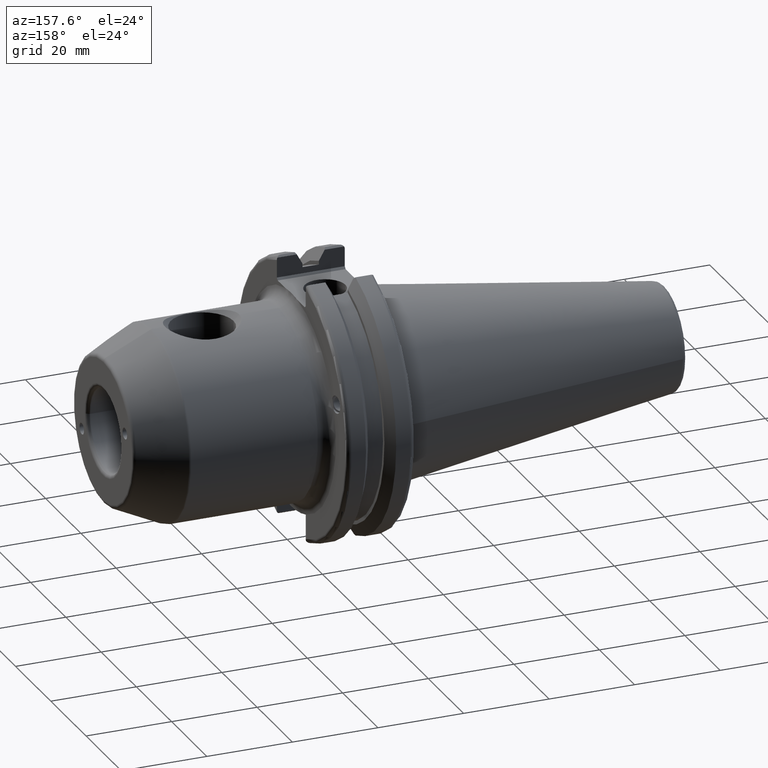
[diagram: clean part render]
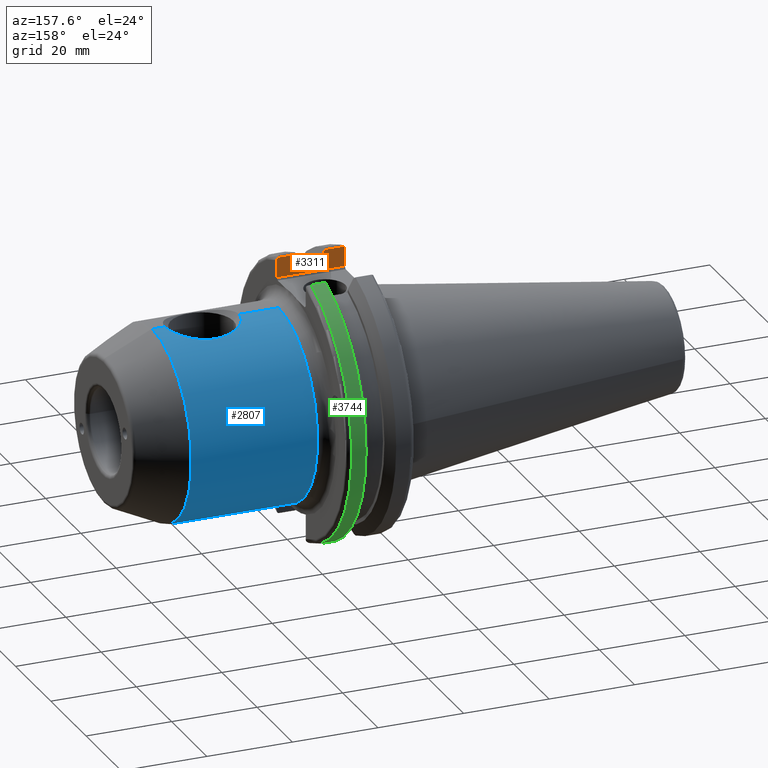
[diagram: same view with three faces highlighted in distinct colors, each labeled with its STEP entity id]
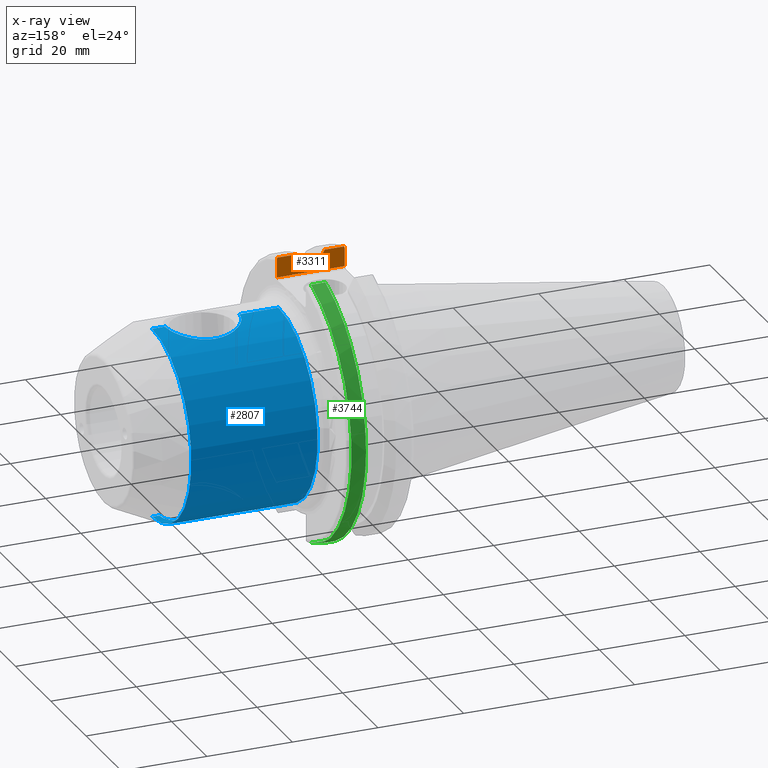
[diagram: x-ray of the same camera — body ghosted, the three highlighted faces saturated]
A machine part, auxiliary view with three faces highlighted in distinct colors.
The next image is the same camera in x-ray (body ghosted, the three faces saturated) — at least one of them is partly hidden behind the body in this view.
Their STEP definitions:

[orange] entity #3311 — the highlighted planar face has unit normal (0, -1, 0).
#859=CARTESIAN_POINT('',(1.890587227491E1,-8.19E0,3.017550162589E1));
#860=CARTESIAN_POINT('',(1.893730245169E1,-8.19E0,3.012160739357E1));
#861=CARTESIAN_POINT('',(1.899008895177E1,-8.19E0,3.001000429245E1));
#862=CARTESIAN_POINT('',(1.903851863936E1,-8.19E0,2.982130314403E1));
#863=CARTESIAN_POINT('',(1.905E1,-8.19E0,2.970021459717E1));
#864=CARTESIAN_POINT('',(1.905E1,-8.19E0,2.963927124610E1));
#866=DIRECTION('',(1.E0,0.E0,0.E0));
#867=VECTOR('',#866,4.524357578422E0);
#868=CARTESIAN_POINT('',(1.438151469649E1,-8.19E0,3.017550162589E1));
#869=LINE('',#868,#867);
#870=DIRECTION('',(0.E0,0.E0,1.E0));
#871=VECTOR('',#870,8.448829287288E-1);
#872=CARTESIAN_POINT('',(1.30491E1,-8.19E0,2.693225575402E1));
#873=LINE('',#872,#871);
#874=DIRECTION('',(0.E0,0.E0,-1.E0));
#875=VECTOR('',#874,8.448829287288E-1);
#876=CARTESIAN_POINT('',(9.2191E0,-8.19E0,2.777713868275E1));
#877=LINE('',#876,#875);
#878=DIRECTION('',(1.E0,0.E0,0.E0));
#879=VECTOR('',#878,4.567557578422E0);
#880=CARTESIAN_POINT('',(3.319127725090E0,-8.19E0,3.017550162589E1));
#881=LINE('',#880,#879);
#882=CARTESIAN_POINT('',(3.175E0,-8.19E0,2.963927124610E1));
#883=CARTESIAN_POINT('',(3.175E0,-8.19E0,2.970021491639E1));
#884=CARTESIAN_POINT('',(3.186481474971E0,-8.19E0,2.982130388489E1));
#885=CARTESIAN_POINT('',(3.234911309555E0,-8.19E0,3.001000497750E1));
#886=CARTESIAN_POINT('',(3.287697705116E0,-8.19E0,3.012160766245E1));
#887=CARTESIAN_POINT('',(3.319127725090E0,-8.19E0,3.017550162589E1));
#889=DIRECTION('',(0.E0,0.E0,1.E0));
#890=VECTOR('',#889,4.139271246102E0);
#891=CARTESIAN_POINT('',(3.175E0,-8.19E0,2.55E1));
#892=LINE('',#891,#890);
#893=DIRECTION('',(-1.E0,0.E0,0.E0));
#894=VECTOR('',#893,1.5875E1);
#895=CARTESIAN_POINT('',(1.905E1,-8.19E0,2.55E1));
#896=LINE('',#895,#894);
#897=DIRECTION('',(0.E0,0.E0,-1.E0));
#898=VECTOR('',#897,4.139271246102E0);
#899=CARTESIAN_POINT('',(1.905E1,-8.19E0,2.963927124610E1));
#900=LINE('',#899,#898);
#1330=CARTESIAN_POINT('',(9.2191E0,-8.19E0,2.777713868275E1));
#1331=CARTESIAN_POINT('',(9.071342064345E0,-8.19E0,2.804395547231E1));
#1332=CARTESIAN_POINT('',(8.775596146973E0,-8.19E0,2.857734670457E1));
#1333=CARTESIAN_POINT('',(8.331432272850E0,-8.19E0,2.937678822525E1));
#1334=CARTESIAN_POINT('',(8.034991770410E0,-8.19E0,2.990933412171E1));
#1335=CARTESIAN_POINT('',(7.886685303513E0,-8.19E0,3.017550162589E1));
#1368=DIRECTION('',(-1.E0,0.E0,0.E0));
#1369=VECTOR('',#1368,3.83E0);
#1370=CARTESIAN_POINT('',(1.30491E1,-8.19E0,2.693225575402E1));
#1371=LINE('',#1370,#1369);
#1406=CARTESIAN_POINT('',(1.438151469649E1,-8.19E0,3.017550162589E1));
#1407=CARTESIAN_POINT('',(1.423320822958E1,-8.19E0,2.990933412169E1));
#1408=CARTESIAN_POINT('',(1.393676772712E1,-8.19E0,2.937678822520E1));
#1409=CARTESIAN_POINT('',(1.349260385300E1,-8.19E0,2.857734670452E1));
#1410=CARTESIAN_POINT('',(1.319685793564E1,-8.19E0,2.804395547229E1));
#1411=CARTESIAN_POINT('',(1.30491E1,-8.19E0,2.777713868275E1));
#2114=CARTESIAN_POINT('',(3.175E0,-8.19E0,2.963927124610E1));
#2116=VERTEX_POINT('',#2114);
#2117=CARTESIAN_POINT('',(3.175E0,-8.19E0,2.55E1));
#2118=VERTEX_POINT('',#2117);
#2163=CARTESIAN_POINT('',(1.905E1,-8.19E0,2.55E1));
#2165=VERTEX_POINT('',#2163);
#2166=CARTESIAN_POINT('',(1.905E1,-8.19E0,2.963927124610E1));
#2167=VERTEX_POINT('',#2166);
#2171=VERTEX_POINT('',#859);
#2175=VERTEX_POINT('',#887);
#2176=CARTESIAN_POINT('',(7.886685303513E0,-8.19E0,3.017550162589E1));
#2177=VERTEX_POINT('',#2176);
#2178=VERTEX_POINT('',#1330);
#2179=CARTESIAN_POINT('',(9.2191E0,-8.19E0,2.693225575402E1));
#2180=VERTEX_POINT('',#2179);
#2181=CARTESIAN_POINT('',(1.30491E1,-8.19E0,2.693225575402E1));
#2182=VERTEX_POINT('',#2181);
#2183=CARTESIAN_POINT('',(1.30491E1,-8.19E0,2.777713868275E1));
#2184=VERTEX_POINT('',#2183);
#2185=VERTEX_POINT('',#1406);
#3284=CARTESIAN_POINT('',(3.175E0,-8.19E0,2.5E1));
#3285=DIRECTION('',(0.E0,-1.E0,0.E0));
#3286=DIRECTION('',(1.E0,0.E0,0.E0));
#3287=AXIS2_PLACEMENT_3D('',#3284,#3285,#3286);
#3288=PLANE('',#3287);
#3290=ORIENTED_EDGE('',*,*,#3289,.F.);
#3292=ORIENTED_EDGE('',*,*,#3291,.F.);
#3294=ORIENTED_EDGE('',*,*,#3293,.T.);
#3296=ORIENTED_EDGE('',*,*,#3295,.F.);
#3298=ORIENTED_EDGE('',*,*,#3297,.T.);
#3300=ORIENTED_EDGE('',*,*,#3299,.F.);
#3302=ORIENTED_EDGE('',*,*,#3301,.T.);
#3303=ORIENTED_EDGE('',*,*,#3276,.F.);
#3304=ORIENTED_EDGE('',*,*,#3230,.F.);
#3305=ORIENTED_EDGE('',*,*,#3197,.F.);
#3307=ORIENTED_EDGE('',*,*,#3306,.F.);
#3308=ORIENTED_EDGE('',*,*,#2938,.F.);
#3309=EDGE_LOOP('',(#3290,#3292,#3294,#3296,#3298,#3300,#3302,#3303,#3304,#3305,
#3307,#3308));
#3310=FACE_OUTER_BOUND('',#3309,.F.);
#3311=ADVANCED_FACE('',(#3310),#3288,.F.);
#865=B_SPLINE_CURVE_WITH_KNOTS('',3,(#859,#860,#861,#862,#863,#864),
.UNSPECIFIED.,.F.,.F.,(4,1,1,4),(0.E0,3.333333333333E-1,6.666666666667E-1,1.E0),
.UNSPECIFIED.);
#888=B_SPLINE_CURVE_WITH_KNOTS('',3,(#882,#883,#884,#885,#886,#887),
.UNSPECIFIED.,.F.,.F.,(4,1,1,4),(0.E0,3.333333333333E-1,6.666666666667E-1,1.E0),
.UNSPECIFIED.);
#1336=B_SPLINE_CURVE_WITH_KNOTS('',3,(#1330,#1331,#1332,#1333,#1334,#1335),
.UNSPECIFIED.,.F.,.F.,(4,1,1,4),(0.E0,3.333333333333E-1,6.666666666667E-1,1.E0),
.UNSPECIFIED.);
#1412=B_SPLINE_CURVE_WITH_KNOTS('',3,(#1406,#1407,#1408,#1409,#1410,#1411),
.UNSPECIFIED.,.F.,.F.,(4,1,1,4),(0.E0,3.333333333333E-1,6.666666666667E-1,1.E0),
.UNSPECIFIED.);
#2938=EDGE_CURVE('',#2167,#2165,#900,.T.);
#3197=EDGE_CURVE('',#2118,#2116,#892,.T.);
#3230=EDGE_CURVE('',#2116,#2175,#888,.T.);
#3276=EDGE_CURVE('',#2175,#2177,#881,.T.);
#3289=EDGE_CURVE('',#2171,#2167,#865,.T.);
#3291=EDGE_CURVE('',#2185,#2171,#869,.T.);
#3293=EDGE_CURVE('',#2185,#2184,#1412,.T.);
#3295=EDGE_CURVE('',#2182,#2184,#873,.T.);
#3297=EDGE_CURVE('',#2182,#2180,#1371,.T.);
#3299=EDGE_CURVE('',#2178,#2180,#877,.T.);
#3301=EDGE_CURVE('',#2178,#2177,#1336,.T.);
#3306=EDGE_CURVE('',#2165,#2118,#896,.T.);

[blue] entity #2807 — the highlighted cylindrical surface (partial cylindrical patch) has radius 22.225 mm, axis along (-1, 0, 0).
#329=CARTESIAN_POINT('',(5.157325667769E1,0.E0,0.E0));
#330=DIRECTION('',(-1.E0,0.E0,0.E0));
#331=DIRECTION('',(0.E0,0.E0,1.E0));
#332=AXIS2_PLACEMENT_3D('',#329,#330,#331);
#334=CARTESIAN_POINT('',(3.123444482325E1,0.E0,2.2225E1));
#335=CARTESIAN_POINT('',(3.123444482325E1,4.883741815366E-1,2.2225E1));
#336=CARTESIAN_POINT('',(3.134335956089E1,1.451315839073E0,2.219410117034E1));
#337=CARTESIAN_POINT('',(3.188307848736E1,2.924021812641E0,2.204667024506E1));
#338=CARTESIAN_POINT('',(3.270991636614E1,4.191791789810E0,2.183712443145E1));
#339=CARTESIAN_POINT('',(3.380338590148E1,5.306783190876E0,2.159080031487E1));
#340=CARTESIAN_POINT('',(3.514705627939E1,6.231512918011E0,2.133913666660E1));
#341=CARTESIAN_POINT('',(3.670973350809E1,6.929616305268E0,2.111972420869E1));
#342=CARTESIAN_POINT('',(3.843010236439E1,7.335809946250E0,2.097986160014E1));
#343=CARTESIAN_POINT('',(3.996404821973E1,7.435625345473E0,2.094412650025E1));
#344=CARTESIAN_POINT('',(4.155436570509E1,7.308677986189E0,2.098947797479E1));
#345=CARTESIAN_POINT('',(4.323791891991E1,6.874957806812E0,2.113775601056E1));
#346=CARTESIAN_POINT('',(4.474254289130E1,6.176876801327E0,2.135481166011E1));
#347=CARTESIAN_POINT('',(4.602847786051E1,5.275795897414E0,2.159794693241E1));
#348=CARTESIAN_POINT('',(4.709307249598E1,4.185195196654E0,2.183796832880E1));
#349=CARTESIAN_POINT('',(4.791248569142E1,2.932339709763E0,2.204550054964E1));
#350=CARTESIAN_POINT('',(4.845646169976E1,1.454350400451E0,2.219403651686E1));
#351=CARTESIAN_POINT('',(4.856555517675E1,4.899060793536E-1,2.2225E1));
#352=CARTESIAN_POINT('',(4.856555517675E1,0.E0,2.2225E1));
#354=CARTESIAN_POINT('',(2.205E1,0.E0,0.E0));
#355=DIRECTION('',(-1.E0,0.E0,0.E0));
#356=DIRECTION('',(0.E0,0.E0,1.E0));
#357=AXIS2_PLACEMENT_3D('',#354,#355,#356);
#359=CARTESIAN_POINT('',(4.99E1,0.E0,-2.2225E1));
#360=CARTESIAN_POINT('',(4.99E1,5.266290554217E-1,-2.2225E1));
#361=CARTESIAN_POINT('',(4.979395168700E1,1.566257158636E0,-2.218892601817E1));
#362=CARTESIAN_POINT('',(4.927199316742E1,3.151051165093E0,-2.201791786874E1));
#363=CARTESIAN_POINT('',(4.846314688054E1,4.532134274058E0,-2.177135091096E1));
#364=CARTESIAN_POINT('',(4.738208981596E1,5.759682141090E0,-2.147654047276E1));
#365=CARTESIAN_POINT('',(4.604667094431E1,6.802810682842E0,-2.116608645173E1));
#366=CARTESIAN_POINT('',(4.442764855761E1,7.650863542211E0,-2.087128953820E1));
#367=CARTESIAN_POINT('',(4.262422491685E1,8.228468318903E0,-2.064717369532E1));
#368=CARTESIAN_POINT('',(4.072215137463E1,8.494900942841E0,-2.053749324676E1));
#369=CARTESIAN_POINT('',(3.911088193251E1,8.496472447896E0,-2.053683753599E1));
#370=CARTESIAN_POINT('',(3.722614872868E1,8.238790116959E0,-2.064295809076E1));
#371=CARTESIAN_POINT('',(3.543057798754E1,7.674748786331E0,-2.086237962810E1));
#372=CARTESIAN_POINT('',(3.379581424746E1,6.831222632456E0,-2.115695619527E1));
#373=CARTESIAN_POINT('',(3.243730993059E1,5.780107640965E0,-2.147134385689E1));
#374=CARTESIAN_POINT('',(3.133596721890E1,4.533502663176E0,-2.177147402450E1));
#375=CARTESIAN_POINT('',(3.052337615752E1,3.140680000151E0,-2.201940569538E1));
#376=CARTESIAN_POINT('',(3.000592258261E1,1.563056913621E0,-2.218898022348E1));
#377=CARTESIAN_POINT('',(2.99E1,5.252032326271E-1,-2.2225E1));
#378=CARTESIAN_POINT('',(2.99E1,0.E0,-2.2225E1));
#408=DIRECTION('',(1.E0,0.E0,-1.181205541071E-14));
#409=VECTOR('',#408,3.007701500942E0);
#410=CARTESIAN_POINT('',(4.856555517675E1,0.E0,2.2225E1));
#411=LINE('',#410,#409);
#412=DIRECTION('',(1.E0,0.E0,0.E0));
#413=VECTOR('',#412,1.673256677694E0);
#414=CARTESIAN_POINT('',(4.99E1,0.E0,-2.2225E1));
#415=LINE('',#414,#413);
#437=DIRECTION('',(1.E0,0.E0,0.E0));
#438=VECTOR('',#437,7.85E0);
#439=CARTESIAN_POINT('',(2.205E1,0.E0,-2.2225E1));
#440=LINE('',#439,#438);
#446=DIRECTION('',(1.E0,0.E0,0.E0));
#447=VECTOR('',#446,9.184444823249E0);
#448=CARTESIAN_POINT('',(2.205E1,0.E0,2.2225E1));
#449=LINE('',#448,#447);
#2385=CARTESIAN_POINT('',(2.205E1,0.E0,2.2225E1));
#2387=VERTEX_POINT('',#2385);
#2388=CARTESIAN_POINT('',(5.157325667769E1,0.E0,2.2225E1));
#2390=VERTEX_POINT('',#2388);
#2397=CARTESIAN_POINT('',(2.205E1,0.E0,-2.2225E1));
#2399=VERTEX_POINT('',#2397);
#2400=CARTESIAN_POINT('',(5.157325667769E1,0.E0,-2.2225E1));
#2402=VERTEX_POINT('',#2400);
#2470=VERTEX_POINT('',#334);
#2471=VERTEX_POINT('',#352);
#2472=VERTEX_POINT('',#359);
#2473=VERTEX_POINT('',#378);
#2785=CARTESIAN_POINT('',(6.51975E1,0.E0,0.E0));
#2786=DIRECTION('',(-1.E0,0.E0,0.E0));
#2787=DIRECTION('',(0.E0,0.E0,-1.E0));
#2788=AXIS2_PLACEMENT_3D('',#2785,#2786,#2787);
#2789=CYLINDRICAL_SURFACE('',#2788,2.2225E1);
#2791=ORIENTED_EDGE('',*,*,#2790,.F.);
#2793=ORIENTED_EDGE('',*,*,#2792,.F.);
#2795=ORIENTED_EDGE('',*,*,#2794,.T.);
#2797=ORIENTED_EDGE('',*,*,#2796,.T.);
#2799=ORIENTED_EDGE('',*,*,#2798,.F.);
#2801=ORIENTED_EDGE('',*,*,#2800,.T.);
#2802=ORIENTED_EDGE('',*,*,#2778,.F.);
#2804=ORIENTED_EDGE('',*,*,#2803,.F.);
#2805=EDGE_LOOP('',(#2791,#2793,#2795,#2797,#2799,#2801,#2802,#2804));
#2806=FACE_OUTER_BOUND('',#2805,.F.);
#2807=ADVANCED_FACE('',(#2806),#2789,.T.);
#333=CIRCLE('',#332,2.2225E1);
#353=B_SPLINE_CURVE_WITH_KNOTS('',3,(#334,#335,#336,#337,#338,#339,#340,#341,
#342,#343,#344,#345,#346,#347,#348,#349,#350,#351,#352),.UNSPECIFIED.,.F.,.F.,
(4,1,1,1,1,1,1,1,1,1,1,1,1,1,1,1,4),(0.E0,6.25E-2,1.25E-1,1.875E-1,2.5E-1,
3.125E-1,3.75E-1,4.375E-1,5.E-1,5.625E-1,6.25E-1,6.875E-1,7.5E-1,8.125E-1,
8.75E-1,9.375E-1,1.E0),.UNSPECIFIED.);
#358=CIRCLE('',#357,2.2225E1);
#379=B_SPLINE_CURVE_WITH_KNOTS('',3,(#359,#360,#361,#362,#363,#364,#365,#366,
#367,#368,#369,#370,#371,#372,#373,#374,#375,#376,#377,#378),.UNSPECIFIED.,.F.,
.F.,(4,1,1,1,1,1,1,1,1,1,1,1,1,1,1,1,1,4),(0.E0,5.882352941176E-2,
1.176470588235E-1,1.764705882353E-1,2.352941176471E-1,2.941176470588E-1,
3.529411764706E-1,4.117647058824E-1,4.705882352941E-1,5.294117647059E-1,
5.882352941176E-1,6.470588235294E-1,7.058823529412E-1,7.647058823529E-1,
8.235294117647E-1,8.823529411765E-1,9.411764705882E-1,1.E0),.UNSPECIFIED.);
#2778=EDGE_CURVE('',#2390,#2402,#333,.T.);
#2790=EDGE_CURVE('',#2470,#2471,#353,.T.);
#2792=EDGE_CURVE('',#2387,#2470,#449,.T.);
#2794=EDGE_CURVE('',#2387,#2399,#358,.T.);
#2796=EDGE_CURVE('',#2399,#2473,#440,.T.);
#2798=EDGE_CURVE('',#2472,#2473,#379,.T.);
#2800=EDGE_CURVE('',#2472,#2402,#415,.T.);
#2803=EDGE_CURVE('',#2471,#2390,#411,.T.);

[green] entity #3744 — the highlighted cylindrical surface (partial cylindrical patch) has radius 31.75 mm, axis along (1, 0, 0).
#1022=CARTESIAN_POINT('',(1.805E1,0.E0,0.E0));
#1023=DIRECTION('',(1.E0,0.E0,0.E0));
#1024=DIRECTION('',(0.E0,2.731353772607E-1,-9.619756055580E-1));
#1025=AXIS2_PLACEMENT_3D('',#1022,#1023,#1024);
#1244=CARTESIAN_POINT('',(1.466026676908E1,8.672048228027E0,-3.054272547647E1));
#1251=CARTESIAN_POINT('',(1.466026676908E1,0.E0,0.E0));
#1252=DIRECTION('',(-1.E0,0.E0,0.E0));
#1253=DIRECTION('',(0.E0,1.E0,0.E0));
#1254=AXIS2_PLACEMENT_3D('',#1251,#1252,#1253);
#1256=CARTESIAN_POINT('',(1.466026676908E1,0.E0,0.E0));
#1257=DIRECTION('',(-1.E0,0.E0,0.E0));
#1258=DIRECTION('',(0.E0,2.731353772607E-1,9.619756055580E-1));
#1259=AXIS2_PLACEMENT_3D('',#1256,#1257,#1258);
#1282=CARTESIAN_POINT('',(1.805E1,8.672048228027E0,-3.054272547647E1));
#1290=DIRECTION('',(1.E0,0.E0,0.E0));
#1291=VECTOR('',#1290,3.389733230924E0);
#1292=CARTESIAN_POINT('',(1.466026676908E1,8.672048228027E0,3.054272547647E1));
#1293=LINE('',#1292,#1291);
#1294=DIRECTION('',(-1.E0,0.E0,0.E0));
#1295=VECTOR('',#1294,3.389733230924E0);
#1296=CARTESIAN_POINT('',(1.805E1,8.672048228027E0,-3.054272547647E1));
#1297=LINE('',#1296,#1295);
#2142=VERTEX_POINT('',#1282);
#2143=CARTESIAN_POINT('',(1.805E1,8.672048228027E0,3.054272547647E1));
#2144=VERTEX_POINT('',#2143);
#2147=VERTEX_POINT('',#1244);
#2233=CARTESIAN_POINT('',(1.466026676908E1,8.672048228027E0,3.054272547647E1));
#2234=VERTEX_POINT('',#2233);
#2235=CARTESIAN_POINT('',(1.466026676908E1,3.175E1,0.E0));
#2236=VERTEX_POINT('',#2235);
#3731=CARTESIAN_POINT('',(1.685513338454E1,0.E0,0.E0));
#3732=DIRECTION('',(1.E0,0.E0,0.E0));
#3733=DIRECTION('',(0.E0,1.E0,0.E0));
#3734=AXIS2_PLACEMENT_3D('',#3731,#3732,#3733);
#3735=CYLINDRICAL_SURFACE('',#3734,3.175E1);
#3736=ORIENTED_EDGE('',*,*,#3436,.T.);
#3738=ORIENTED_EDGE('',*,*,#3737,.F.);
#3739=ORIENTED_EDGE('',*,*,#3707,.T.);
#3740=ORIENTED_EDGE('',*,*,#3705,.T.);
#3741=ORIENTED_EDGE('',*,*,#3724,.F.);
#3742=EDGE_LOOP('',(#3736,#3738,#3739,#3740,#3741));
#3743=FACE_OUTER_BOUND('',#3742,.F.);
#3744=ADVANCED_FACE('',(#3743),#3735,.T.);
#1026=CIRCLE('',#1025,3.175E1);
#1255=CIRCLE('',#1254,3.175E1);
#1260=CIRCLE('',#1259,3.175E1);
#3436=EDGE_CURVE('',#2142,#2144,#1026,.T.);
#3705=EDGE_CURVE('',#2236,#2147,#1255,.T.);
#3707=EDGE_CURVE('',#2234,#2236,#1260,.T.);
#3724=EDGE_CURVE('',#2142,#2147,#1297,.T.);
#3737=EDGE_CURVE('',#2234,#2144,#1293,.T.);